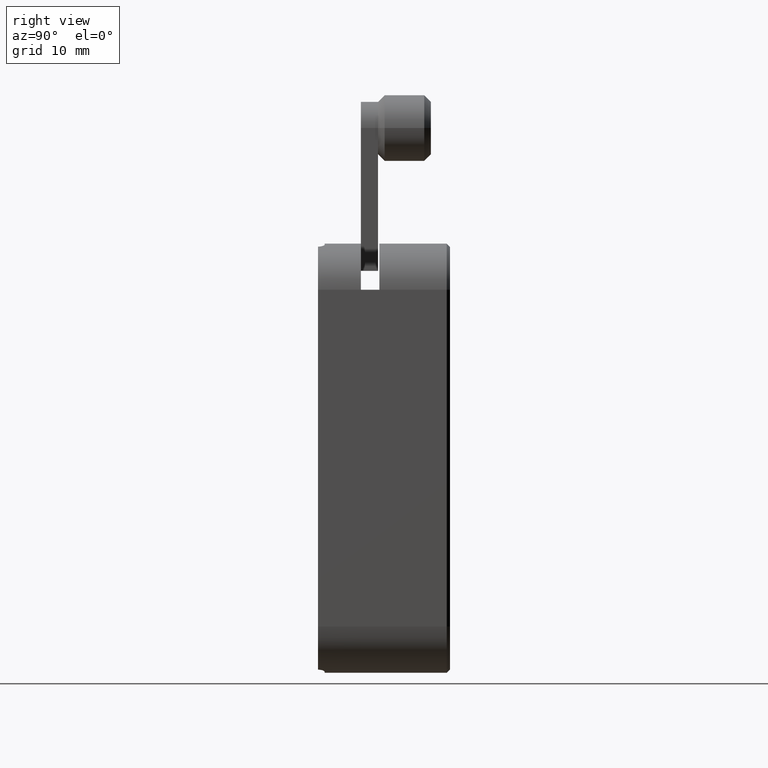
[diagram: clean part render]
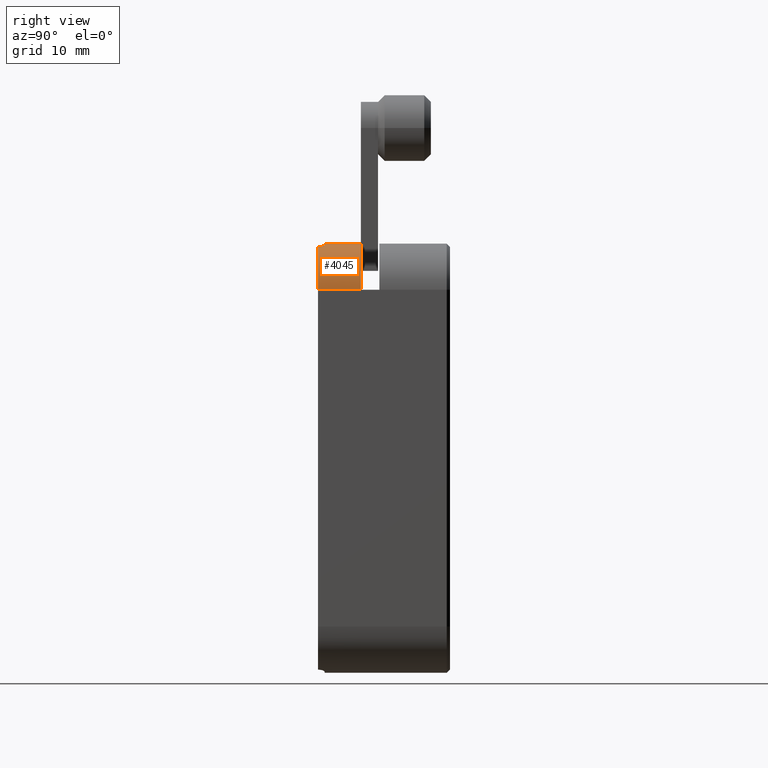
[diagram: same view with one face highlighted and labeled with its STEP entity id]
A machine part, right view. The second image highlights one B-rep face of the part: STEP entity #4045.
In plain terms, the highlighted cylindrical surface (partial cylindrical patch) has radius 7 mm, axis along (-0, 1, 0).
Its self-contained STEP definition (entity closure, byte-faithful):
#44 = EDGE_CURVE ( 'NONE', #6963, #3735, #3575, .T. ) ;
#207 = LINE ( 'NONE', #3053, #4093 ) ;
#432 = ORIENTED_EDGE ( 'NONE', *, *, #849, .F. ) ;
#529 = LINE ( 'NONE', #1705, #3333 ) ;
#543 = DIRECTION ( 'NONE',  ( -2.428612866367530500E-017, 1.000000000000000000, 3.252606517456514300E-019 ) ) ;
#849 = EDGE_CURVE ( 'NONE', #7806, #4253, #207, .T. ) ;
#895 = CARTESIAN_POINT ( 'NONE',  ( 27.86988855746651000, -2.989363237595873600, 32.08685261659410800 ) ) ;
#1078 = CYLINDRICAL_SURFACE ( 'NONE', #2275, 7.000000000000002700 ) ;
#1094 = EDGE_LOOP ( 'NONE', ( #5763, #7423, #7631, #432, #4312, #5597 ) ) ;
#1326 = DIRECTION ( 'NONE',  ( 0.0000000000000000000, 0.0000000000000000000, -1.000000000000000000 ) ) ;
#1470 = CARTESIAN_POINT ( 'NONE',  ( 28.00000000000001400, -3.365138604587098100, 32.03834841531100600 ) ) ;
#1705 = CARTESIAN_POINT ( 'NONE',  ( 32.50000000000004300, -3.750000000000004400, 25.49999999999999600 ) ) ;
#1766 = DIRECTION ( 'NONE',  ( 2.428612866367530500E-017, -1.000000000000000000, -3.252606517456514300E-019 ) ) ;
#1791 = CIRCLE ( 'NONE', #5473, 7.000000000000006200 ) ;
#2131 = CARTESIAN_POINT ( 'NONE',  ( 25.50000000000002100, 3.000000000000002700, 32.50000000000000000 ) ) ;
#2164 = CARTESIAN_POINT ( 'NONE',  ( 27.26131941364515000, -2.526194218504454800, 32.27591635570902900 ) ) ;
#2275 = AXIS2_PLACEMENT_3D ( 'NONE', #7111, #3993, #3535 ) ;
#2444 = EDGE_CURVE ( 'NONE', #4253, #5992, #1791, .T. ) ;
#2565 = CARTESIAN_POINT ( 'NONE',  ( 32.50000000000004300, 3.000000000000000900, 25.50000000000000000 ) ) ;
#2776 = CIRCLE ( 'NONE', #3642, 7.000000000000006200 ) ;
#2777 = DIRECTION ( 'NONE',  ( 0.0000000000000000000, 0.0000000000000000000, -1.000000000000000000 ) ) ;
#2807 = CARTESIAN_POINT ( 'NONE',  ( 27.00000000000003900, -2.500000000000004400, 32.33739716558866200 ) ) ;
#2896 = VERTEX_POINT ( 'NONE', #7509 ) ;
#3053 = CARTESIAN_POINT ( 'NONE',  ( 25.50000000000001400, -3.750000000000002200, 32.49999999999998600 ) ) ;
#3194 = CARTESIAN_POINT ( 'NONE',  ( 25.50000000000002100, -3.500000000000001800, 25.50000000000000400 ) ) ;
#3333 = VECTOR ( 'NONE', #1766, 1000.000000000000000 ) ;
#3335 = FACE_OUTER_BOUND ( 'NONE', #1094, .T. ) ;
#3361 = CARTESIAN_POINT ( 'NONE',  ( 27.97265693377472200, -3.232802517396408300, 32.04896685404645500 ) ) ;
#3535 = DIRECTION ( 'NONE',  ( 0.0000000000000000000, 0.0000000000000000000, 1.000000000000000000 ) ) ;
#3568 = CARTESIAN_POINT ( 'NONE',  ( 27.00000000000003900, -2.500000000000004400, 32.33739716558866200 ) ) ;
#3575 = B_SPLINE_CURVE_WITH_KNOTS ( 'NONE', 3,
 ( #4069, #1470, #3361, #895, #6513, #5978, #7824, #2164, #4102, #2807 ),
 .UNSPECIFIED., .F., .F.,
 ( 4, 2, 2, 2, 4 ),
 ( 0.0000000000000000000, 0.0003986201477505613800, 0.0007972402955011227600, 0.001195860443251684000, 0.001594480591002245500 ),
 .UNSPECIFIED. ) ;
#3642 = AXIS2_PLACEMENT_3D ( 'NONE', #3194, #8218, #1326 ) ;
#3735 = VERTEX_POINT ( 'NONE', #3568 ) ;
#3993 = DIRECTION ( 'NONE',  ( -2.428612866367530500E-017, 1.000000000000000000, 3.252606517456514300E-019 ) ) ;
#4027 = DIRECTION ( 'NONE',  ( 2.428612866367530500E-017, -1.000000000000000000, -3.252606517456514300E-019 ) ) ;
#4045 = ADVANCED_FACE ( 'NONE', ( #3335 ), #1078, .T. ) ;
#4069 = CARTESIAN_POINT ( 'NONE',  ( 28.00000000000001100, -3.500000000000003100, 32.03834841531101300 ) ) ;
#4093 = VECTOR ( 'NONE', #543, 1000.000000000000000 ) ;
#4102 = CARTESIAN_POINT ( 'NONE',  ( 27.13159367606920100, -2.500000000000008400, 32.30852791763899700 ) ) ;
#4250 = DIRECTION ( 'NONE',  ( -2.428612866367530500E-017, 1.000000000000000000, -6.396792817664477700E-018 ) ) ;
#4253 = VERTEX_POINT ( 'NONE', #2131 ) ;
#4312 = ORIENTED_EDGE ( 'NONE', *, *, #7621, .F. ) ;
#4746 = EDGE_CURVE ( 'NONE', #2896, #6963, #2776, .T. ) ;
#5262 = CARTESIAN_POINT ( 'NONE',  ( 25.50000000000002100, -2.500000000000003600, 25.49999999999999600 ) ) ;
#5473 = AXIS2_PLACEMENT_3D ( 'NONE', #7341, #4250, #6094 ) ;
#5597 = ORIENTED_EDGE ( 'NONE', *, *, #44, .F. ) ;
#5763 = ORIENTED_EDGE ( 'NONE', *, *, #4746, .F. ) ;
#5978 = CARTESIAN_POINT ( 'NONE',  ( 27.60991958972923000, -2.697031018777069600, 32.17515328621951200 ) ) ;
#5992 = VERTEX_POINT ( 'NONE', #2565 ) ;
#6094 = DIRECTION ( 'NONE',  ( 0.0000000000000000000, 0.0000000000000000000, 1.000000000000000000 ) ) ;
#6128 = EDGE_CURVE ( 'NONE', #5992, #2896, #529, .T. ) ;
#6513 = CARTESIAN_POINT ( 'NONE',  ( 27.79429557798189500, -2.878827217643860500, 32.11404867463968300 ) ) ;
#6648 = CIRCLE ( 'NONE', #8046, 7.000000000000006200 ) ;
#6801 = CARTESIAN_POINT ( 'NONE',  ( 25.50000000000001800, -2.500000000000003600, 32.49999999999999300 ) ) ;
#6959 = CARTESIAN_POINT ( 'NONE',  ( 28.00000000000001100, -3.500000000000003100, 32.03834841531101300 ) ) ;
#6963 = VERTEX_POINT ( 'NONE', #6959 ) ;
#7111 = CARTESIAN_POINT ( 'NONE',  ( 25.50000000000002100, -3.750000000000003600, 25.50000000000000000 ) ) ;
#7341 = CARTESIAN_POINT ( 'NONE',  ( 25.50000000000002100, 3.000000000000004000, 25.49999999999998900 ) ) ;
#7423 = ORIENTED_EDGE ( 'NONE', *, *, #6128, .F. ) ;
#7509 = CARTESIAN_POINT ( 'NONE',  ( 32.50000000000004300, -3.500000000000002200, 25.49999999999998900 ) ) ;
#7621 = EDGE_CURVE ( 'NONE', #3735, #7806, #6648, .T. ) ;
#7631 = ORIENTED_EDGE ( 'NONE', *, *, #2444, .F. ) ;
#7806 = VERTEX_POINT ( 'NONE', #6801 ) ;
#7824 = CARTESIAN_POINT ( 'NONE',  ( 27.49952328087133700, -2.624179226160094900, 32.20948546355843000 ) ) ;
#8046 = AXIS2_PLACEMENT_3D ( 'NONE', #5262, #4027, #2777 ) ;
#8218 = DIRECTION ( 'NONE',  ( 2.428612866367530500E-017, -1.000000000000000000, 6.396792817664477700E-018 ) ) ;